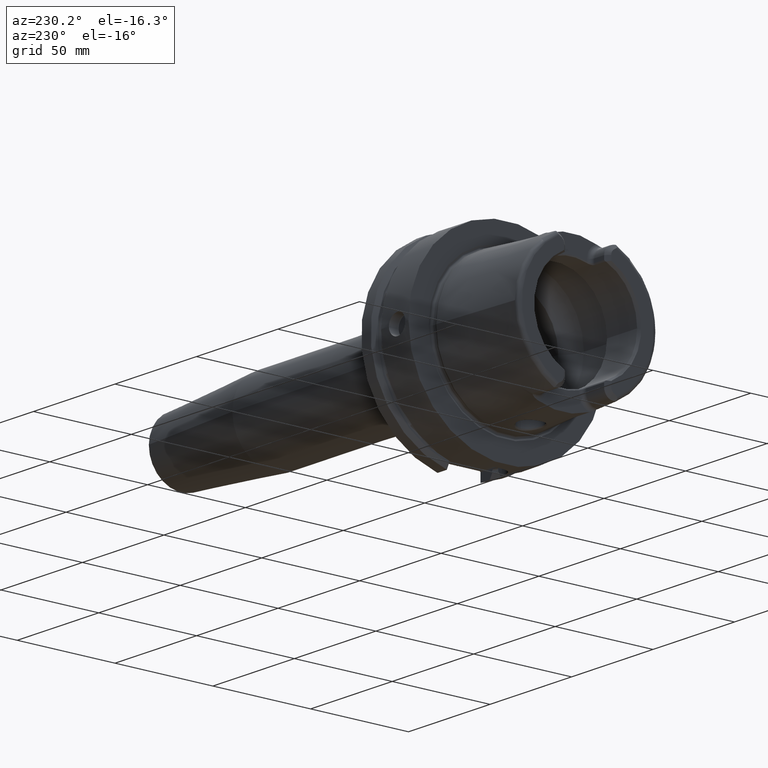
[diagram: clean part render]
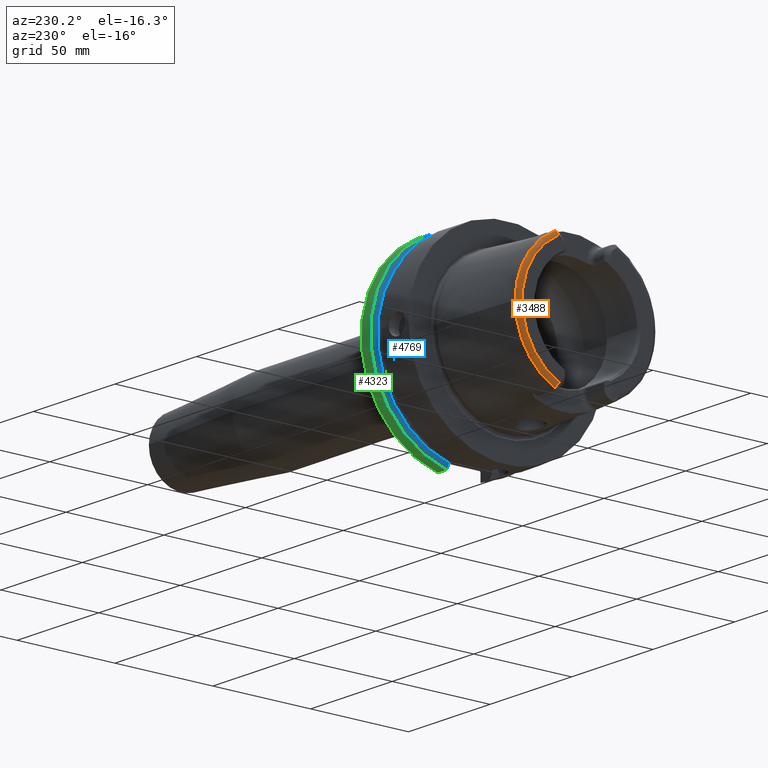
[diagram: same view with three faces highlighted in distinct colors, each labeled with its STEP entity id]
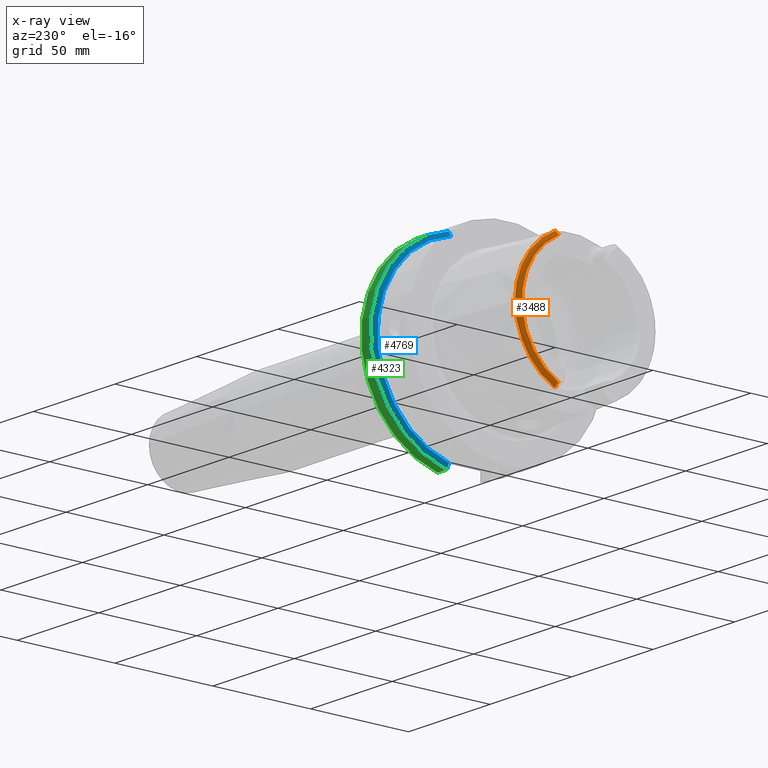
[diagram: x-ray of the same camera — body ghosted, the three highlighted faces saturated]
A machine part, auxiliary view with three faces highlighted in distinct colors.
The next image is the same camera in x-ray (body ghosted, the three faces saturated) — at least one of them is partly hidden behind the body in this view.
Their STEP definitions:

[orange] entity #3488 — the highlighted toroidal blend (fillet) surface has major radius 33.6002 mm and minor (blend) radius 2 mm.
#284=CARTESIAN_POINT('',(-4.885415732441E1,1.524233599545E1,-3.196E1));
#285=CARTESIAN_POINT('',(-4.892042682917E1,1.528184575722E1,-3.190647917074E1));
#286=CARTESIAN_POINT('',(-4.904907337055E1,1.534921107261E1,-3.179688001462E1));
#287=CARTESIAN_POINT('',(-4.923089295558E1,1.541590864687E1,-3.162456500561E1));
#288=CARTESIAN_POINT('',(-4.939996141290E1,1.544678596655E1,-3.144531182725E1));
#289=CARTESIAN_POINT('',(-4.955291678113E1,1.544062482823E1,-3.126231590503E1));
#290=CARTESIAN_POINT('',(-4.968961398491E1,1.539492909283E1,-3.107422253444E1));
#291=CARTESIAN_POINT('',(-4.980222556701E1,1.531137807264E1,-3.089122966690E1));
#292=CARTESIAN_POINT('',(-4.98920182E1,1.518913217588E1,-3.071134017670E1));
#293=CARTESIAN_POINT('',(-4.995490319930E1,1.503380242251E1,-3.054277251898E1));
#294=CARTESIAN_POINT('',(-4.999193874033E1,1.484926520259E1,-3.038665452223E1));
#295=CARTESIAN_POINT('',(-5.E1,1.470886141623E1,-3.029144627288E1));
#296=CARTESIAN_POINT('',(-5.E1,1.463423248617E1,-3.024586108239E1));
#298=CARTESIAN_POINT('',(-4.810007448473E1,1.567653238626E1,-3.196E1));
#299=CARTESIAN_POINT('',(-4.814854926161E1,1.567101764283E1,-3.196E1));
#300=CARTESIAN_POINT('',(-4.824699718528E1,1.565188578280E1,-3.196E1));
#301=CARTESIAN_POINT('',(-4.840101233225E1,1.559467216883E1,-3.196E1));
#302=CARTESIAN_POINT('',(-4.855439166438E1,1.550852477714E1,-3.196E1));
#303=CARTESIAN_POINT('',(-4.870516089830E1,1.539385143023E1,-3.196E1));
#304=CARTESIAN_POINT('',(-4.880487439669E1,1.529641023181E1,-3.196E1));
#305=CARTESIAN_POINT('',(-4.885415732441E1,1.524233599545E1,-3.196E1));
#307=CARTESIAN_POINT('',(-4.810007448473E1,0.E0,0.E0));
#308=DIRECTION('',(-1.E0,0.E0,0.E0));
#309=DIRECTION('',(0.E0,1.E0,0.E0));
#310=AXIS2_PLACEMENT_3D('',#307,#308,#309);
#312=CARTESIAN_POINT('',(-4.810007448473E1,0.E0,0.E0));
#313=DIRECTION('',(1.E0,0.E0,0.E0));
#314=DIRECTION('',(0.E0,1.E0,0.E0));
#315=AXIS2_PLACEMENT_3D('',#312,#313,#314);
#317=CARTESIAN_POINT('',(-4.885415732441E1,1.524233599545E1,3.196E1));
#318=CARTESIAN_POINT('',(-4.880489671373E1,1.529638574510E1,3.196E1));
#319=CARTESIAN_POINT('',(-4.870522589790E1,1.539380534287E1,3.196E1));
#320=CARTESIAN_POINT('',(-4.855425205604E1,1.550861743949E1,3.196E1));
#321=CARTESIAN_POINT('',(-4.840102922174E1,1.559466231398E1,3.196E1));
#322=CARTESIAN_POINT('',(-4.824685927015E1,1.565193052527E1,3.196E1));
#323=CARTESIAN_POINT('',(-4.814849310230E1,1.567102403180E1,3.196E1));
#324=CARTESIAN_POINT('',(-4.810007448473E1,1.567653238626E1,3.196E1));
#326=CARTESIAN_POINT('',(-5.E1,1.463423248617E1,3.024586108239E1));
#327=CARTESIAN_POINT('',(-5.E1,1.470887052533E1,3.029145183695E1));
#328=CARTESIAN_POINT('',(-4.999193668301E1,1.484929336697E1,3.038667413649E1));
#329=CARTESIAN_POINT('',(-4.995488930905E1,1.503385996795E1,3.054282394569E1));
#330=CARTESIAN_POINT('',(-4.989197500232E1,1.518921649175E1,3.071144229779E1));
#331=CARTESIAN_POINT('',(-4.980215470263E1,1.531145218524E1,3.089135797532E1));
#332=CARTESIAN_POINT('',(-4.968951481558E1,1.539498007461E1,3.107436988164E1));
#333=CARTESIAN_POINT('',(-4.955280820452E1,1.544064650585E1,3.126245637594E1));
#334=CARTESIAN_POINT('',(-4.939976008409E1,1.544677878772E1,3.144554335861E1));
#335=CARTESIAN_POINT('',(-4.923056226109E1,1.541582067272E1,3.162489877544E1));
#336=CARTESIAN_POINT('',(-4.904873698401E1,1.534905210810E1,3.179717709171E1));
#337=CARTESIAN_POINT('',(-4.892028850269E1,1.528176328722E1,3.190659088650E1));
#338=CARTESIAN_POINT('',(-4.885415732441E1,1.524233599545E1,3.196E1));
#340=CARTESIAN_POINT('',(-5.E1,0.E0,0.E0));
#341=DIRECTION('',(-1.E0,0.E0,0.E0));
#342=DIRECTION('',(0.E0,4.355401503799E-1,9.001693048572E-1));
#343=AXIS2_PLACEMENT_3D('',#340,#341,#342);
#2737=CARTESIAN_POINT('',(-4.810007448473E1,3.559768626831E1,0.E0));
#2738=VERTEX_POINT('',#2737);
#2777=CARTESIAN_POINT('',(-4.810007448473E1,1.567653238626E1,3.196E1));
#2778=VERTEX_POINT('',#2777);
#2809=CARTESIAN_POINT('',(-5.E1,1.463423248617E1,3.024586108239E1));
#2810=VERTEX_POINT('',#2809);
#2811=VERTEX_POINT('',#338);
#2857=CARTESIAN_POINT('',(-4.810007448473E1,1.567653238626E1,-3.196E1));
#2858=VERTEX_POINT('',#2857);
#2900=CARTESIAN_POINT('',(-5.E1,1.463423248617E1,-3.024586108239E1));
#2901=VERTEX_POINT('',#2900);
#2902=VERTEX_POINT('',#284);
#3470=CARTESIAN_POINT('',(-4.8E1,0.E0,0.E0));
#3471=DIRECTION('',(1.E0,0.E0,0.E0));
#3472=DIRECTION('',(0.E0,-1.E0,0.E0));
#3473=AXIS2_PLACEMENT_3D('',#3470,#3471,#3472);
#3474=TOROIDAL_SURFACE('',#3473,3.360019156306E1,2.E0);
#3476=ORIENTED_EDGE('',*,*,#3475,.F.);
#3478=ORIENTED_EDGE('',*,*,#3477,.F.);
#3480=ORIENTED_EDGE('',*,*,#3479,.F.);
#3481=ORIENTED_EDGE('',*,*,#3196,.T.);
#3483=ORIENTED_EDGE('',*,*,#3482,.F.);
#3484=ORIENTED_EDGE('',*,*,#3461,.F.);
#3485=ORIENTED_EDGE('',*,*,#3260,.T.);
#3486=EDGE_LOOP('',(#3476,#3478,#3480,#3481,#3483,#3484,#3485));
#3487=FACE_OUTER_BOUND('',#3486,.F.);
#3488=ADVANCED_FACE('',(#3487),#3474,.T.);
#297=B_SPLINE_CURVE_WITH_KNOTS('',3,(#284,#285,#286,#287,#288,#289,#290,#291,
#292,#293,#294,#295,#296),.UNSPECIFIED.,.F.,.F.,(4,1,1,1,1,1,1,1,1,1,4),(0.E0,
1.E-1,2.E-1,3.E-1,4.E-1,5.E-1,6.E-1,7.E-1,8.E-1,9.E-1,1.E0),.UNSPECIFIED.);
#306=B_SPLINE_CURVE_WITH_KNOTS('',3,(#298,#299,#300,#301,#302,#303,#304,#305),
.UNSPECIFIED.,.F.,.F.,(4,1,1,1,1,4),(0.E0,2.E-1,4.E-1,6.E-1,8.E-1,1.E0),
.UNSPECIFIED.);
#311=CIRCLE('',#310,3.559768626831E1);
#316=CIRCLE('',#315,3.559768626831E1);
#325=B_SPLINE_CURVE_WITH_KNOTS('',3,(#317,#318,#319,#320,#321,#322,#323,#324),
.UNSPECIFIED.,.F.,.F.,(4,1,1,1,1,4),(0.E0,2.E-1,4.E-1,6.E-1,8.E-1,1.E0),
.UNSPECIFIED.);
#339=B_SPLINE_CURVE_WITH_KNOTS('',3,(#326,#327,#328,#329,#330,#331,#332,#333,
#334,#335,#336,#337,#338),.UNSPECIFIED.,.F.,.F.,(4,1,1,1,1,1,1,1,1,1,4),(0.E0,
1.E-1,2.E-1,3.E-1,4.E-1,5.E-1,6.E-1,7.E-1,8.E-1,9.E-1,1.E0),.UNSPECIFIED.);
#344=CIRCLE('',#343,3.360019156306E1);
#3196=EDGE_CURVE('',#2738,#2778,#316,.T.);
#3260=EDGE_CURVE('',#2810,#2901,#344,.T.);
#3461=EDGE_CURVE('',#2810,#2811,#339,.T.);
#3475=EDGE_CURVE('',#2902,#2901,#297,.T.);
#3477=EDGE_CURVE('',#2858,#2902,#306,.T.);
#3479=EDGE_CURVE('',#2738,#2858,#311,.T.);
#3482=EDGE_CURVE('',#2811,#2778,#325,.T.);

[blue] entity #4769 — the highlighted conical surface has half-angle 60 deg.
#1646=CARTESIAN_POINT('',(2.324759526419E1,1.1E1,-4.877499359303E1));
#1647=CARTESIAN_POINT('',(2.309075618244E1,1.1E1,-4.849651763825E1));
#1648=CARTESIAN_POINT('',(2.277996511889E1,1.1E1,-4.794446101512E1));
#1649=CARTESIAN_POINT('',(2.232251548208E1,1.1E1,-4.713119970766E1));
#1650=CARTESIAN_POINT('',(2.202321854676E1,1.1E1,-4.659863454325E1));
#1651=CARTESIAN_POINT('',(2.1875E1,1.1E1,-4.633477721644E1));
#1653=CARTESIAN_POINT('',(2.324759526419E1,0.E0,0.E0));
#1654=DIRECTION('',(1.E0,0.E0,0.E0));
#1655=DIRECTION('',(0.E0,2.2E-1,-9.754998718606E-1));
#1656=AXIS2_PLACEMENT_3D('',#1653,#1654,#1655);
#1658=CARTESIAN_POINT('',(2.1875E1,1.E1,4.656083740331E1));
#1659=CARTESIAN_POINT('',(2.202341485415E1,1.E1,4.682376142925E1));
#1660=CARTESIAN_POINT('',(2.232297392293E1,1.E1,4.735424823675E1));
#1661=CARTESIAN_POINT('',(2.278043311037E1,1.E1,4.816377318979E1));
#1662=CARTESIAN_POINT('',(2.309095690730E1,1.E1,4.871289474479E1));
#1663=CARTESIAN_POINT('',(2.324759526419E1,1.E1,4.898979485566E1));
#1665=CARTESIAN_POINT('',(2.1875E1,0.E0,0.E0));
#1666=DIRECTION('',(-1.E0,0.E0,0.E0));
#1667=DIRECTION('',(0.E0,2.099843560504E-1,9.777047459300E-1));
#1668=AXIS2_PLACEMENT_3D('',#1665,#1666,#1667);
#3006=CARTESIAN_POINT('',(2.1875E1,1.E1,4.656083740331E1));
#3007=VERTEX_POINT('',#3006);
#3009=VERTEX_POINT('',#1663);
#3018=CARTESIAN_POINT('',(2.324759526419E1,1.1E1,-4.877499359303E1));
#3020=VERTEX_POINT('',#3018);
#3046=CARTESIAN_POINT('',(2.1875E1,1.1E1,-4.633477721644E1));
#3047=VERTEX_POINT('',#3046);
#4757=CARTESIAN_POINT('',(2.256129763210E1,0.E0,0.E0));
#4758=DIRECTION('',(1.E0,0.E0,0.E0));
#4759=DIRECTION('',(0.E0,-1.E0,0.E0));
#4760=AXIS2_PLACEMENT_3D('',#4757,#4758,#4759);
#4761=CONICAL_SURFACE('',#4760,4.881129763210E1,6.E1);
#4762=ORIENTED_EDGE('',*,*,#4388,.F.);
#4763=ORIENTED_EDGE('',*,*,#4319,.T.);
#4765=ORIENTED_EDGE('',*,*,#4764,.F.);
#4766=ORIENTED_EDGE('',*,*,#4721,.T.);
#4767=EDGE_LOOP('',(#4762,#4763,#4765,#4766));
#4768=FACE_OUTER_BOUND('',#4767,.F.);
#4769=ADVANCED_FACE('',(#4768),#4761,.T.);
#1652=B_SPLINE_CURVE_WITH_KNOTS('',3,(#1646,#1647,#1648,#1649,#1650,#1651),
.UNSPECIFIED.,.F.,.F.,(4,1,1,4),(0.E0,3.333333333333E-1,6.666666666667E-1,1.E0),
.UNSPECIFIED.);
#1657=CIRCLE('',#1656,5.E1);
#1664=B_SPLINE_CURVE_WITH_KNOTS('',3,(#1658,#1659,#1660,#1661,#1662,#1663),
.UNSPECIFIED.,.F.,.F.,(4,1,1,4),(0.E0,3.333333333333E-1,6.666666666667E-1,1.E0),
.UNSPECIFIED.);
#1669=CIRCLE('',#1668,4.762259526419E1);
#4319=EDGE_CURVE('',#3020,#3009,#1657,.T.);
#4388=EDGE_CURVE('',#3020,#3047,#1652,.T.);
#4721=EDGE_CURVE('',#3007,#3047,#1669,.T.);
#4764=EDGE_CURVE('',#3007,#3009,#1664,.T.);

[green] entity #4323 — the highlighted cylindrical surface (partial cylindrical patch) has radius 50 mm, axis along (1, 0, 0).
#1110=DIRECTION('',(1.E0,0.E0,0.E0));
#1111=VECTOR('',#1110,5.752404735808E0);
#1112=CARTESIAN_POINT('',(2.324759526419E1,1.1E1,-4.877499359303E1));
#1113=LINE('',#1112,#1111);
#1114=CARTESIAN_POINT('',(2.9E1,0.E0,0.E0));
#1115=DIRECTION('',(1.E0,0.E0,0.E0));
#1116=DIRECTION('',(0.E0,2.2E-1,-9.754998718606E-1));
#1117=AXIS2_PLACEMENT_3D('',#1114,#1115,#1116);
#1119=DIRECTION('',(1.E0,0.E0,0.E0));
#1120=VECTOR('',#1119,5.752404735808E0);
#1121=CARTESIAN_POINT('',(2.324759526419E1,1.E1,4.898979485566E1));
#1122=LINE('',#1121,#1120);
#1653=CARTESIAN_POINT('',(2.324759526419E1,0.E0,0.E0));
#1654=DIRECTION('',(1.E0,0.E0,0.E0));
#1655=DIRECTION('',(0.E0,2.2E-1,-9.754998718606E-1));
#1656=AXIS2_PLACEMENT_3D('',#1653,#1654,#1655);
#1663=CARTESIAN_POINT('',(2.324759526419E1,1.E1,4.898979485566E1));
#3009=VERTEX_POINT('',#1663);
#3018=CARTESIAN_POINT('',(2.324759526419E1,1.1E1,-4.877499359303E1));
#3019=CARTESIAN_POINT('',(2.9E1,1.1E1,-4.877499359303E1));
#3020=VERTEX_POINT('',#3018);
#3021=VERTEX_POINT('',#3019);
#3064=CARTESIAN_POINT('',(2.9E1,1.E1,4.898979485566E1));
#3065=VERTEX_POINT('',#3064);
#4309=CARTESIAN_POINT('',(-5.395E1,0.E0,0.E0));
#4310=DIRECTION('',(1.E0,0.E0,0.E0));
#4311=DIRECTION('',(0.E0,-1.E0,0.E0));
#4312=AXIS2_PLACEMENT_3D('',#4309,#4310,#4311);
#4313=CYLINDRICAL_SURFACE('',#4312,5.E1);
#4315=ORIENTED_EDGE('',*,*,#4314,.T.);
#4316=ORIENTED_EDGE('',*,*,#4258,.T.);
#4318=ORIENTED_EDGE('',*,*,#4317,.F.);
#4320=ORIENTED_EDGE('',*,*,#4319,.F.);
#4321=EDGE_LOOP('',(#4315,#4316,#4318,#4320));
#4322=FACE_OUTER_BOUND('',#4321,.F.);
#4323=ADVANCED_FACE('',(#4322),#4313,.T.);
#1118=CIRCLE('',#1117,5.E1);
#1657=CIRCLE('',#1656,5.E1);
#4258=EDGE_CURVE('',#3021,#3065,#1118,.T.);
#4314=EDGE_CURVE('',#3020,#3021,#1113,.T.);
#4317=EDGE_CURVE('',#3009,#3065,#1122,.T.);
#4319=EDGE_CURVE('',#3020,#3009,#1657,.T.);